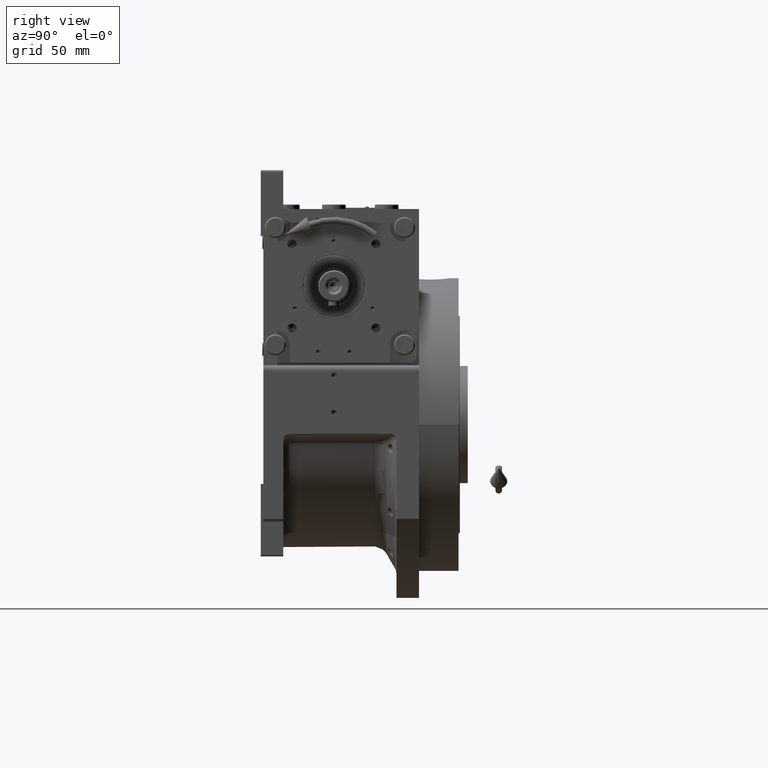
[diagram: clean part render]
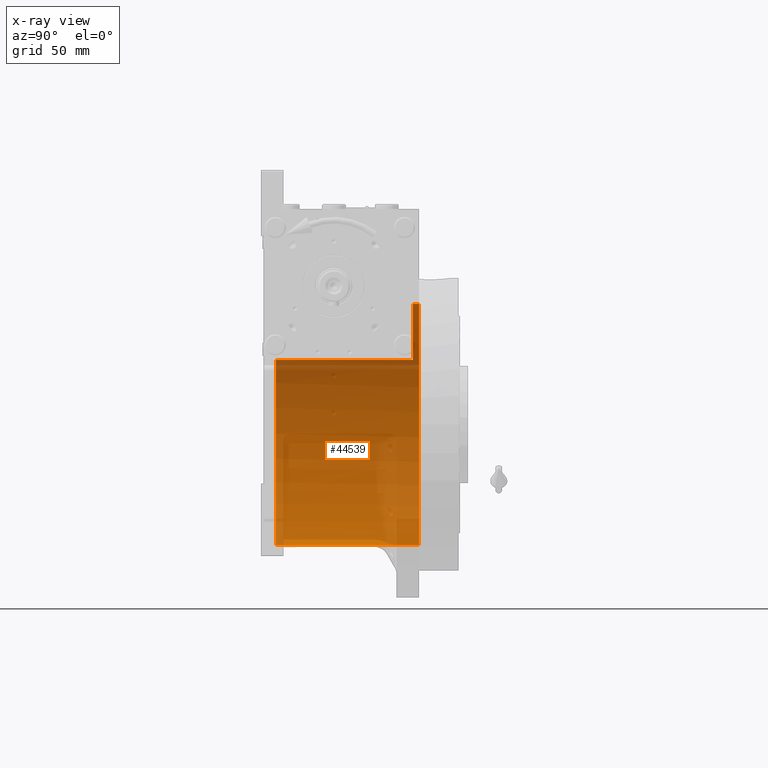
[diagram: x-ray — body ghosted, one internal face saturated and labeled with its STEP entity id]
A machine part, right view, then the same camera in x-ray: the body is ghosted and one INTERNAL B-rep face — a face not visible from any outside direction — is saturated and labeled: STEP entity #44539.
In plain terms, the highlighted cylindrical surface (partial cylindrical patch) has radius 91.5 mm, axis along (0, -1, 0).
Its self-contained STEP definition (entity closure, byte-faithful):
#822 = DIRECTION ( 'NONE',  ( 1.776356839400250465E-15, 0.000000000000000000, -1.000000000000000000 ) ) ;
#1685 = ORIENTED_EDGE ( 'NONE', *, *, #22901, .F. ) ;
#2713 = DIRECTION ( 'NONE',  ( 0.000000000000000000, 1.000000000000000000, 0.000000000000000000 ) ) ;
#2881 = CIRCLE ( 'NONE', #67205, 91.50000000000000000 ) ;
#3110 = LINE ( 'NONE', #50990, #61462 ) ;
#3664 = LINE ( 'NONE', #30716, #58065 ) ;
#5278 = CARTESIAN_POINT ( 'NONE',  ( 1.120551821219827868E-14, 60.00000000000000000, 91.50000000000000000 ) ) ;
#5753 = ORIENTED_EDGE ( 'NONE', *, *, #7223, .F. ) ;
#5871 = CARTESIAN_POINT ( 'NONE',  ( 0.000000000000000000, 64.50000000000000000, -91.50000000000000000 ) ) ;
#7223 = EDGE_CURVE ( 'NONE', #10561, #46040, #44155, .T. ) ;
#7277 = CARTESIAN_POINT ( 'NONE',  ( -77.27386362800814368, -44.00000000000000000, 49.00000000000000000 ) ) ;
#8207 = EDGE_CURVE ( 'NONE', #66337, #24360, #3664, .T. ) ;
#8743 = EDGE_LOOP ( 'NONE', ( #26328, #26024, #1685, #5753, #24514, #67381 ) ) ;
#10561 = VERTEX_POINT ( 'NONE', #7277 ) ;
#10614 = EDGE_CURVE ( 'NONE', #21697, #26097, #3110, .T. ) ;
#12350 = CARTESIAN_POINT ( 'NONE',  ( 1.120551821219827868E-14, 64.50000000000000000, 91.50000000000000000 ) ) ;
#14530 = DIRECTION ( 'NONE',  ( 0.000000000000000000, 0.000000000000000000, 1.000000000000000000 ) ) ;
#15013 = AXIS2_PLACEMENT_3D ( 'NONE', #53559, #48354, #822 ) ;
#16265 = CARTESIAN_POINT ( 'NONE',  ( 0.000000000000000000, 64.50000000000000000, 0.000000000000000000 ) ) ;
#19335 = CIRCLE ( 'NONE', #60278, 91.50000000000000000 ) ;
#21697 = VERTEX_POINT ( 'NONE', #12350 ) ;
#22901 = EDGE_CURVE ( 'NONE', #46040, #26097, #44892, .T. ) ;
#23371 = AXIS2_PLACEMENT_3D ( 'NONE', #46878, #41346, #62535 ) ;
#24273 = DIRECTION ( 'NONE',  ( 0.000000000000000000, -1.000000000000000000, 0.000000000000000000 ) ) ;
#24360 = VERTEX_POINT ( 'NONE', #40714 ) ;
#24514 = ORIENTED_EDGE ( 'NONE', *, *, #50661, .F. ) ;
#26024 = ORIENTED_EDGE ( 'NONE', *, *, #10614, .T. ) ;
#26097 = VERTEX_POINT ( 'NONE', #5278 ) ;
#26328 = ORIENTED_EDGE ( 'NONE', *, *, #47888, .F. ) ;
#28911 = DIRECTION ( 'NONE',  ( -0.000000000000000000, 1.000000000000000000, -0.000000000000000000 ) ) ;
#30597 = FACE_OUTER_BOUND ( 'NONE', #8743, .T. ) ;
#30716 = CARTESIAN_POINT ( 'NONE',  ( 0.000000000000000000, 69.00000000000004263, -91.50000000000000000 ) ) ;
#39653 = CARTESIAN_POINT ( 'NONE',  ( -77.27386362800812947, 69.00000000000004263, 48.99999999999998579 ) ) ;
#40714 = CARTESIAN_POINT ( 'NONE',  ( 0.000000000000000000, -44.00000000000000000, -91.50000000000000000 ) ) ;
#41346 = DIRECTION ( 'NONE',  ( 0.000000000000000000, -1.000000000000000000, 0.000000000000000000 ) ) ;
#44155 = LINE ( 'NONE', #39653, #60196 ) ;
#44539 = ADVANCED_FACE ( 'NONE', ( #30597 ), #51746, .F. ) ;
#44892 = CIRCLE ( 'NONE', #15013, 91.50000000000000000 ) ;
#46040 = VERTEX_POINT ( 'NONE', #58394 ) ;
#46878 = CARTESIAN_POINT ( 'NONE',  ( 0.000000000000000000, 69.00000000000004263, 0.000000000000000000 ) ) ;
#47888 = EDGE_CURVE ( 'NONE', #21697, #66337, #19335, .T. ) ;
#48354 = DIRECTION ( 'NONE',  ( 0.000000000000000000, 1.000000000000000000, 0.000000000000000000 ) ) ;
#50661 = EDGE_CURVE ( 'NONE', #24360, #10561, #2881, .T. ) ;
#50990 = CARTESIAN_POINT ( 'NONE',  ( 1.120551821219827868E-14, 69.00000000000004263, 91.50000000000000000 ) ) ;
#51746 = CYLINDRICAL_SURFACE ( 'NONE', #23371, 91.50000000000000000 ) ;
#53559 = CARTESIAN_POINT ( 'NONE',  ( 0.000000000000000000, 60.00000000000000000, 0.000000000000000000 ) ) ;
#53695 = DIRECTION ( 'NONE',  ( -0.000000000000000000, -1.000000000000000000, -0.000000000000000000 ) ) ;
#58065 = VECTOR ( 'NONE', #62312, 1000.000000000000000 ) ;
#58394 = CARTESIAN_POINT ( 'NONE',  ( -77.27386362800814368, 60.00000000000000000, 48.99999999999998579 ) ) ;
#59268 = DIRECTION ( 'NONE',  ( 0.000000000000000000, 0.000000000000000000, 1.000000000000000000 ) ) ;
#60196 = VECTOR ( 'NONE', #28911, 1000.000000000000000 ) ;
#60278 = AXIS2_PLACEMENT_3D ( 'NONE', #16265, #53695, #59268 ) ;
#61018 = CARTESIAN_POINT ( 'NONE',  ( 0.000000000000000000, -44.00000000000000000, 0.000000000000000000 ) ) ;
#61462 = VECTOR ( 'NONE', #24273, 1000.000000000000000 ) ;
#62312 = DIRECTION ( 'NONE',  ( 0.000000000000000000, -1.000000000000000000, 0.000000000000000000 ) ) ;
#62535 = DIRECTION ( 'NONE',  ( 0.000000000000000000, 0.000000000000000000, -1.000000000000000000 ) ) ;
#66337 = VERTEX_POINT ( 'NONE', #5871 ) ;
#67205 = AXIS2_PLACEMENT_3D ( 'NONE', #61018, #2713, #14530 ) ;
#67381 = ORIENTED_EDGE ( 'NONE', *, *, #8207, .F. ) ;